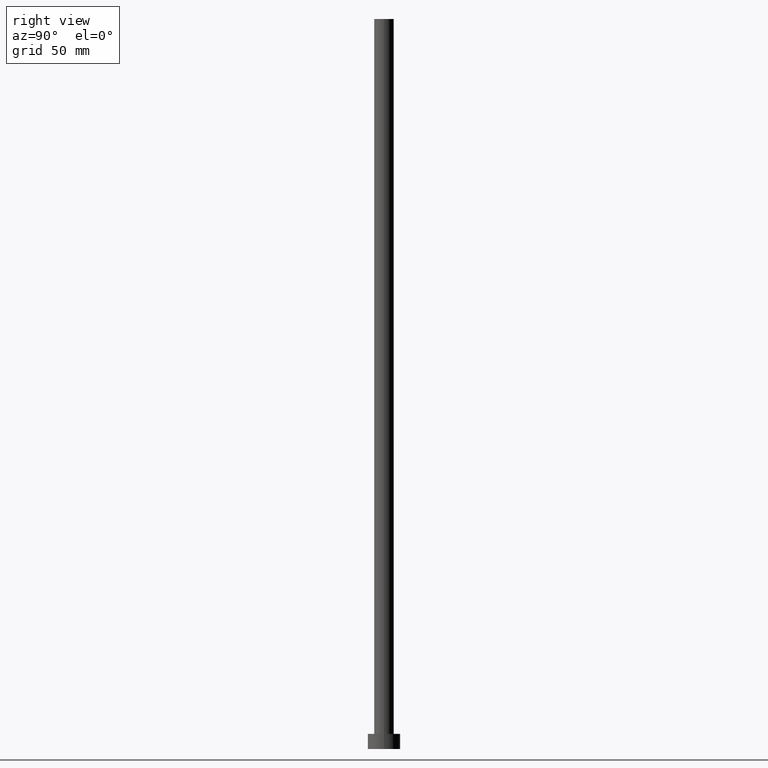
[diagram: clean part render]
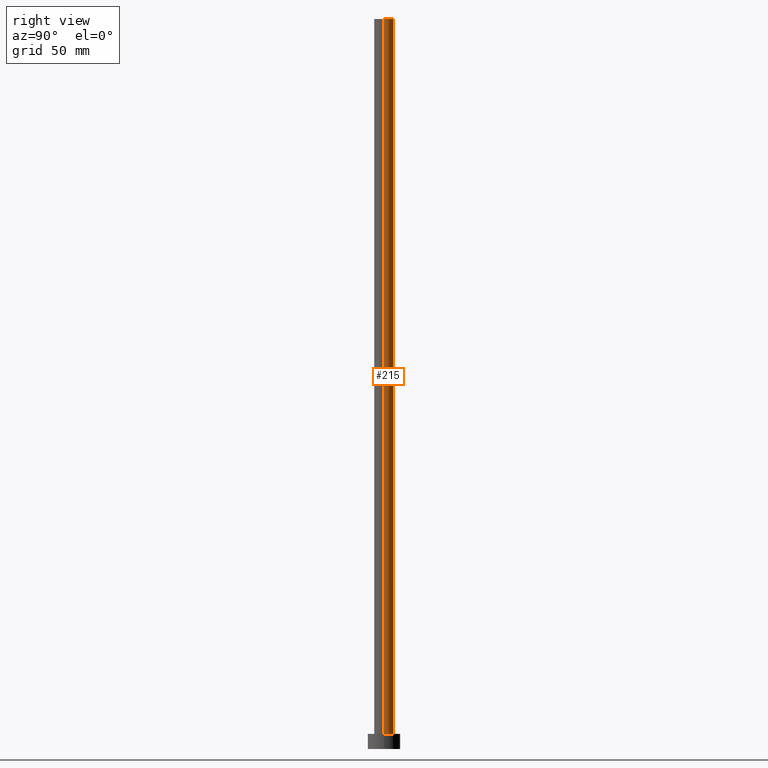
[diagram: same view with one face highlighted and labeled with its STEP entity id]
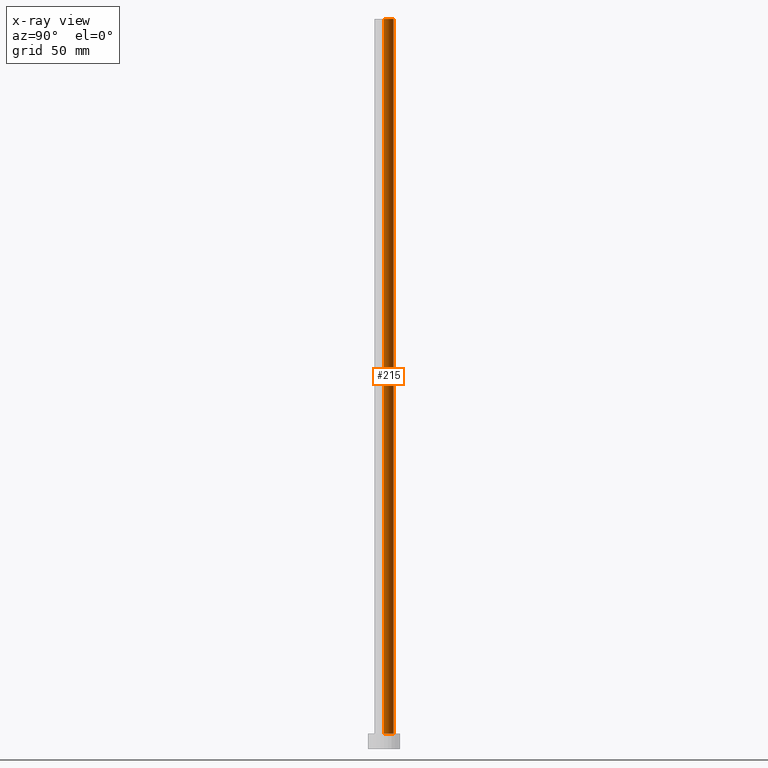
[diagram: x-ray of the same camera — body ghosted, the highlighted face saturated]
A machine part, right view. The second image highlights one B-rep face of the part: STEP entity #215.
The next image is the same camera in x-ray: the body ghosted, the highlighted face saturated — about 0% of this face is hidden behind the body in this view.
In plain terms, the highlighted cylindrical surface (edge-blend (fillet) strip) has radius 4.25 mm, axis along (-0, -0, -1).
Its self-contained STEP definition (entity closure, byte-faithful):
#5 = DIRECTION ( 'NONE',  ( -0.000000000000000000, -0.000000000000000000, -1.000000000000000000 ) ) ;
#17 = VECTOR ( 'NONE', #55, 1000.000000000000000 ) ;
#25 = DIRECTION ( 'NONE',  ( -0.000000000000000000, -0.000000000000000000, -1.000000000000000000 ) ) ;
#41 = CIRCLE ( 'NONE', #78, 4.250000000000000000 ) ;
#48 = CARTESIAN_POINT ( 'NONE',  ( -4.250000000000000000, 0.000000000000000000, 315.0000000000000000 ) ) ;
#54 = CYLINDRICAL_SURFACE ( 'NONE', #116, 4.250000000000000000 ) ;
#55 = DIRECTION ( 'NONE',  ( -0.000000000000000000, -0.000000000000000000, -1.000000000000000000 ) ) ;
#56 = EDGE_LOOP ( 'NONE', ( #61, #57, #235, #187 ) ) ;
#57 = ORIENTED_EDGE ( 'NONE', *, *, #140, .T. ) ;
#61 = ORIENTED_EDGE ( 'NONE', *, *, #129, .F. ) ;
#67 = CARTESIAN_POINT ( 'NONE',  ( 4.250000000000000000, 5.204748896376249713E-16, 315.0000000000000000 ) ) ;
#68 = CARTESIAN_POINT ( 'NONE',  ( 4.250000000000000000, 5.204748896376249713E-16, 6.500000000000000000 ) ) ;
#78 = AXIS2_PLACEMENT_3D ( 'NONE', #205, #184, #161 ) ;
#86 = VECTOR ( 'NONE', #25, 1000.000000000000000 ) ;
#87 = DIRECTION ( 'NONE',  ( -1.000000000000000000, 0.000000000000000000, 0.000000000000000000 ) ) ;
#114 = EDGE_CURVE ( 'NONE', #117, #191, #181, .T. ) ;
#116 = AXIS2_PLACEMENT_3D ( 'NONE', #182, #5, #87 ) ;
#117 = VERTEX_POINT ( 'NONE', #48 ) ;
#128 = DIRECTION ( 'NONE',  ( 0.000000000000000000, 0.000000000000000000, 1.000000000000000000 ) ) ;
#129 = EDGE_CURVE ( 'NONE', #216, #117, #186, .T. ) ;
#140 = EDGE_CURVE ( 'NONE', #216, #212, #233, .T. ) ;
#149 = CARTESIAN_POINT ( 'NONE',  ( -4.250000000000000000, 0.000000000000000000, 6.500000000000000000 ) ) ;
#161 = DIRECTION ( 'NONE',  ( 1.000000000000000000, 0.000000000000000000, 0.000000000000000000 ) ) ;
#162 = AXIS2_PLACEMENT_3D ( 'NONE', #163, #128, #227 ) ;
#163 = CARTESIAN_POINT ( 'NONE',  ( 0.000000000000000000, 0.000000000000000000, 315.0000000000000000 ) ) ;
#168 = EDGE_CURVE ( 'NONE', #212, #191, #41, .T. ) ;
#181 = LINE ( 'NONE', #183, #17 ) ;
#182 = CARTESIAN_POINT ( 'NONE',  ( 0.000000000000000000, 0.000000000000000000, 315.0000000000000000 ) ) ;
#183 = CARTESIAN_POINT ( 'NONE',  ( -4.250000000000000000, 0.000000000000000000, 315.0000000000000000 ) ) ;
#184 = DIRECTION ( 'NONE',  ( 0.000000000000000000, 0.000000000000000000, 1.000000000000000000 ) ) ;
#186 = CIRCLE ( 'NONE', #162, 4.250000000000000000 ) ;
#187 = ORIENTED_EDGE ( 'NONE', *, *, #114, .F. ) ;
#191 = VERTEX_POINT ( 'NONE', #149 ) ;
#203 = FACE_OUTER_BOUND ( 'NONE', #56, .T. ) ;
#205 = CARTESIAN_POINT ( 'NONE',  ( 0.000000000000000000, 0.000000000000000000, 6.500000000000000000 ) ) ;
#212 = VERTEX_POINT ( 'NONE', #68 ) ;
#215 = ADVANCED_FACE ( 'NONE', ( #203 ), #54, .T. ) ;
#216 = VERTEX_POINT ( 'NONE', #229 ) ;
#227 = DIRECTION ( 'NONE',  ( 1.000000000000000000, 0.000000000000000000, 0.000000000000000000 ) ) ;
#229 = CARTESIAN_POINT ( 'NONE',  ( 4.250000000000000000, 5.204748896376249713E-16, 315.0000000000000000 ) ) ;
#233 = LINE ( 'NONE', #67, #86 ) ;
#235 = ORIENTED_EDGE ( 'NONE', *, *, #168, .T. ) ;